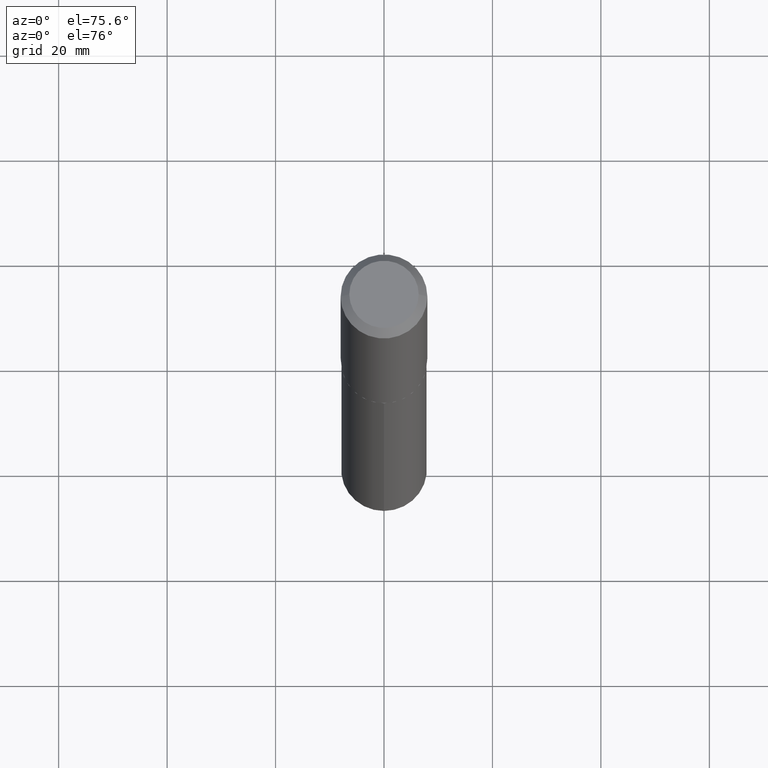
[diagram: clean part render]
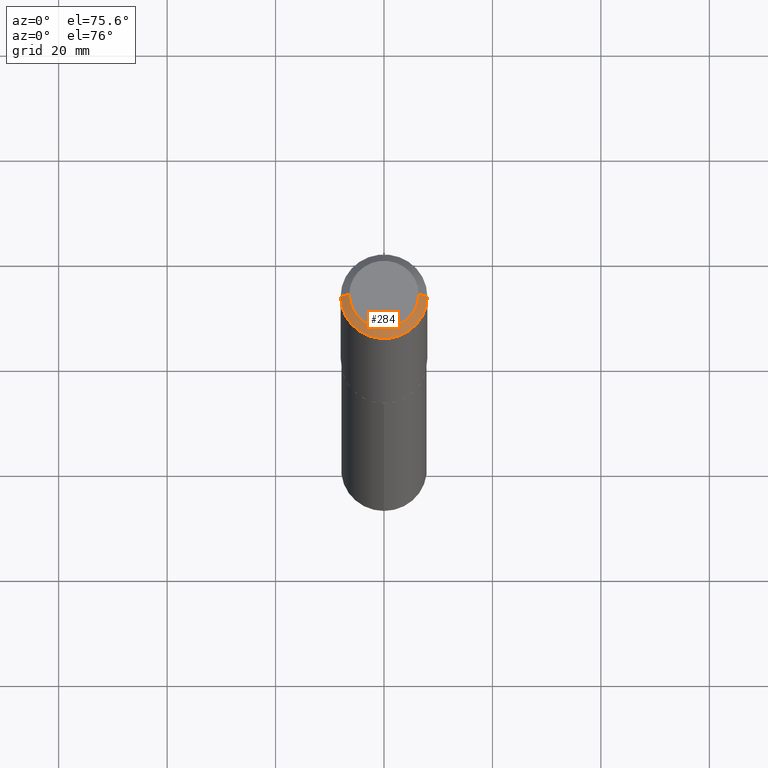
[diagram: same view with one face highlighted and labeled with its STEP entity id]
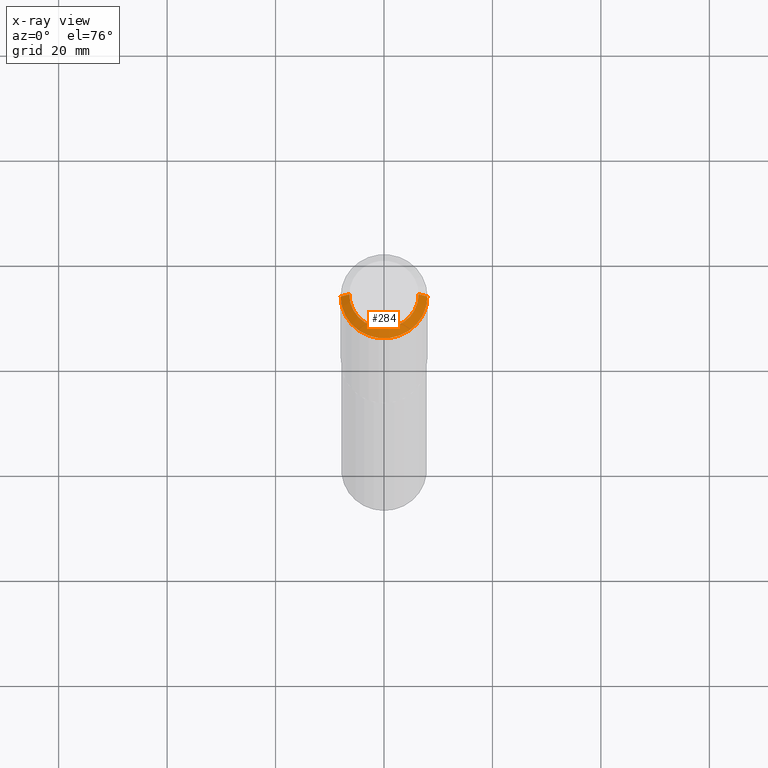
[diagram: x-ray of the same camera — body ghosted, the highlighted face saturated]
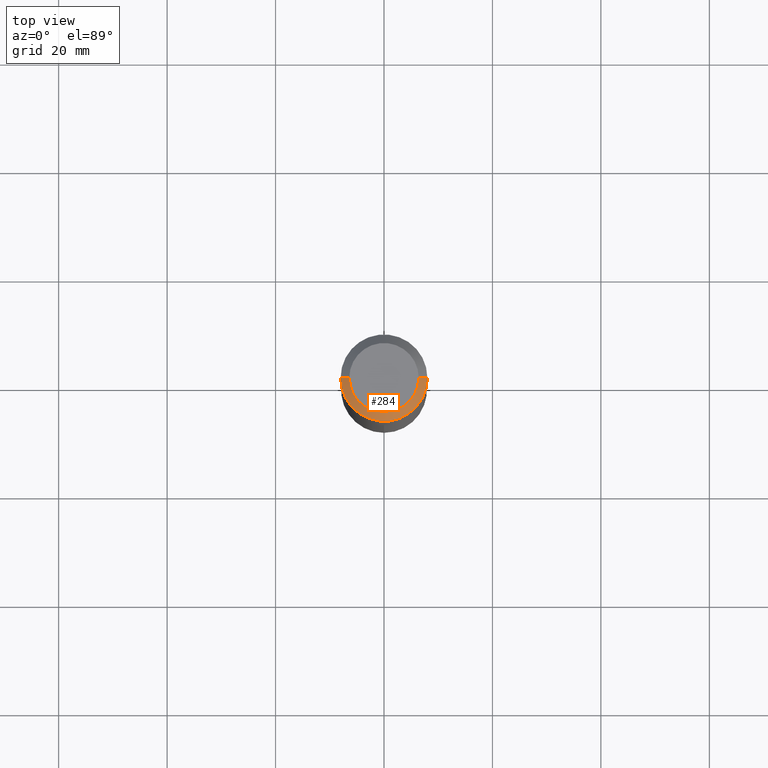
[diagram: same view with one face highlighted and labeled with its STEP entity id]
A machine part, auxiliary view. The second image highlights one B-rep face of the part: STEP entity #284.
The next image is the same camera in x-ray: the body ghosted, the highlighted face saturated — about 0% of this face is hidden behind the body in this view.
A second angle (top view) of the same face is appended — the face is thin or edge-on in the first view.
In plain terms, the highlighted conical surface has half-angle 45 deg.
Its self-contained STEP definition (entity closure, byte-faithful):
#1 = ORIENTED_EDGE ( 'NONE', *, *, #155, .F. ) ;
#3 = CARTESIAN_POINT ( 'NONE',  ( 0.2519600000000000173, -2.054606664725195058E-15, 3.855188123729206640E-18 ) ) ;
#14 = CARTESIAN_POINT ( 'NONE',  ( 0.3149500000000000077, -2.380642253931875190E-15, -0.06299000000000036514 ) ) ;
#22 = EDGE_CURVE ( 'NONE', #470, #327, #127, .T. ) ;
#32 = AXIS2_PLACEMENT_3D ( 'NONE', #427, #352, #171 ) ;
#55 = LINE ( 'NONE', #14, #248 ) ;
#56 = AXIS2_PLACEMENT_3D ( 'NONE', #160, #382, #269 ) ;
#107 = DIRECTION ( 'NONE',  ( -2.445468806185136597E-29, 3.491481338843145583E-15, 1.000000000000000000 ) ) ;
#108 = EDGE_LOOP ( 'NONE', ( #1, #161, #408, #201 ) ) ;
#127 = CIRCLE ( 'NONE', #331, 0.2519600000000000173 ) ;
#155 = EDGE_CURVE ( 'NONE', #327, #340, #55, .T. ) ;
#160 = CARTESIAN_POINT ( 'NONE',  ( 1.540400801016026329E-30, -2.199284095337310135E-16, -0.06299000000000036514 ) ) ;
#161 = ORIENTED_EDGE ( 'NONE', *, *, #22, .F. ) ;
#169 = DIRECTION ( 'NONE',  ( 0.7071067811865453523, -7.319954787623248157E-15, -0.7071067811865496822 ) ) ;
#171 = DIRECTION ( 'NONE',  ( 1.000000000000000000, -6.982962677686266711E-15, 0.000000000000000000 ) ) ;
#186 = LINE ( 'NONE', #328, #189 ) ;
#189 = VECTOR ( 'NONE', #486, 39.37007874015748143 ) ;
#201 = ORIENTED_EDGE ( 'NONE', *, *, #416, .T. ) ;
#222 = EDGE_CURVE ( 'NONE', #470, #394, #186, .T. ) ;
#248 = VECTOR ( 'NONE', #169, 39.37007874015748143 ) ;
#252 = CARTESIAN_POINT ( 'NONE',  ( -9.427742298522569579E-47, 1.346031739168368629E-32, 3.855188123715871501E-18 ) ) ;
#262 = FACE_OUTER_BOUND ( 'NONE', #108, .T. ) ;
#269 = DIRECTION ( 'NONE',  ( -1.000000000000000000, 6.982962677686266711E-15, 0.000000000000000000 ) ) ;
#270 = CARTESIAN_POINT ( 'NONE',  ( -0.2519600000000000173, 1.869391481036695286E-15, 3.855188123703182704E-18 ) ) ;
#284 = ADVANCED_FACE ( 'NONE', ( #262 ), #432, .T. ) ;
#327 = VERTEX_POINT ( 'NONE', #3 ) ;
#328 = CARTESIAN_POINT ( 'NONE',  ( -0.3149500000000000077, 1.979355685803558833E-15, -0.06299000000000036514 ) ) ;
#331 = AXIS2_PLACEMENT_3D ( 'NONE', #252, #107, #368 ) ;
#340 = VERTEX_POINT ( 'NONE', #344 ) ;
#341 = CARTESIAN_POINT ( 'NONE',  ( -0.3149500000000000077, -1.138041502844306206E-15, -0.06299000000000036514 ) ) ;
#344 = CARTESIAN_POINT ( 'NONE',  ( 0.3149500000000000077, -2.419212504871020909E-15, -0.06299000000000036514 ) ) ;
#352 = DIRECTION ( 'NONE',  ( -2.445468806185136597E-29, 3.491481338843145583E-15, 1.000000000000000000 ) ) ;
#355 = CIRCLE ( 'NONE', #32, 0.3149500000000000077 ) ;
#368 = DIRECTION ( 'NONE',  ( 1.000000000000000000, -6.982962677686266711E-15, 4.876115136096691995E-29 ) ) ;
#382 = DIRECTION ( 'NONE',  ( 2.445468806185136597E-29, -3.491481338843145583E-15, -1.000000000000000000 ) ) ;
#394 = VERTEX_POINT ( 'NONE', #341 ) ;
#408 = ORIENTED_EDGE ( 'NONE', *, *, #222, .T. ) ;
#416 = EDGE_CURVE ( 'NONE', #394, #340, #355, .T. ) ;
#427 = CARTESIAN_POINT ( 'NONE',  ( 1.540400801016026329E-30, -2.199284095337310135E-16, -0.06299000000000036514 ) ) ;
#432 = CONICAL_SURFACE ( 'NONE', #56, 0.3149500000000000077, 0.7853981633974452814 ) ;
#470 = VERTEX_POINT ( 'NONE', #270 ) ;
#486 = DIRECTION ( 'NONE',  ( -0.7071067811865453523, 2.468850131082234184E-15, -0.7071067811865496822 ) ) ;